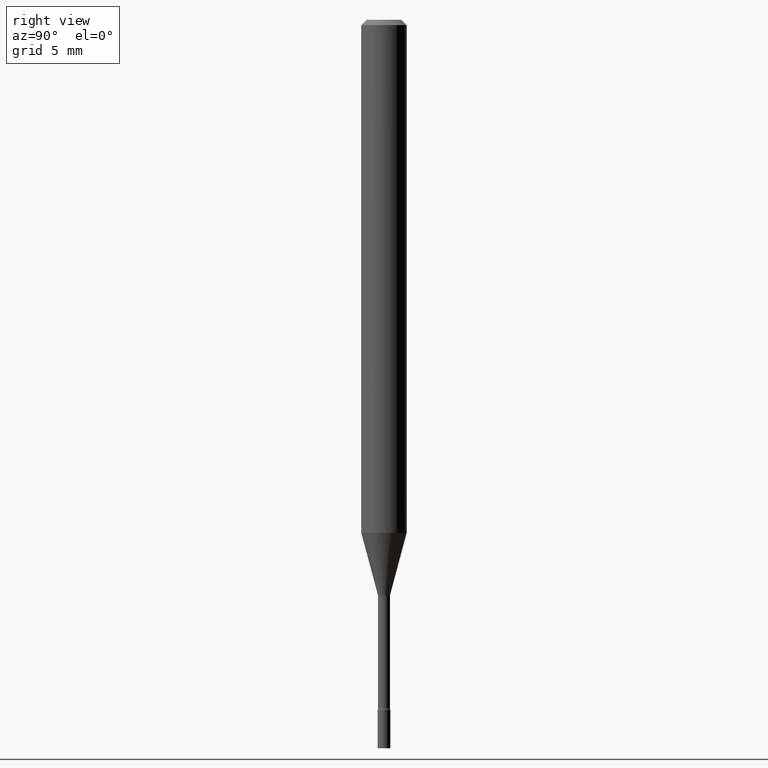
[diagram: clean part render]
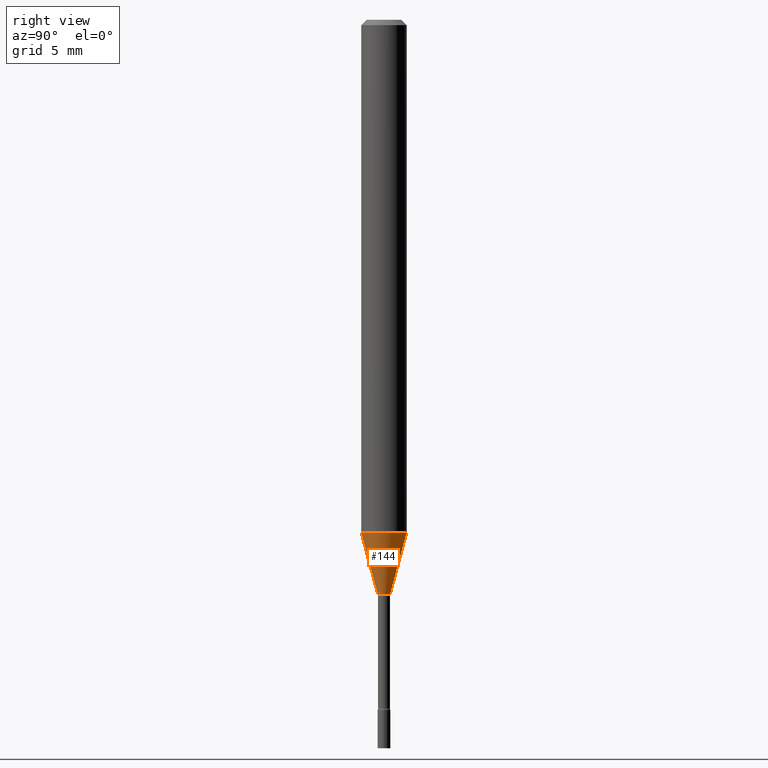
[diagram: same view with one face highlighted and labeled with its STEP entity id]
A machine part, right view. The second image highlights one B-rep face of the part: STEP entity #144.
In plain terms, the highlighted conical surface has half-angle 15 deg.
Its self-contained STEP definition (entity closure, byte-faithful):
#12 = CIRCLE ( 'NONE', #345, 0.06250000000000000000 ) ;
#21 = CONICAL_SURFACE ( 'NONE', #461, 0.01696111260566397771, 0.2617993877991496299 ) ;
#49 = CARTESIAN_POINT ( 'NONE',  ( 1.205159535236746208E-16, 0.01696111260565846823, -1.578092501787273116 ) ) ;
#54 = LINE ( 'NONE', #49, #253 ) ;
#65 = EDGE_CURVE ( 'NONE', #342, #257, #54, .T. ) ;
#76 = DIRECTION ( 'NONE',  ( -2.445498038093453575E-29, 3.491439477086658862E-15, 1.000000000000000000 ) ) ;
#82 = CARTESIAN_POINT ( 'NONE',  ( -4.364351673553573540E-16, -0.06250000000000494049, -1.408139060311453195 ) ) ;
#98 = VECTOR ( 'NONE', #503, 39.37007874015748854 ) ;
#114 = DIRECTION ( 'NONE',  ( -6.982962677686265922E-15, -1.000000000000000000, 4.370956789862821150E-15 ) ) ;
#115 = ORIENTED_EDGE ( 'NONE', *, *, #410, .F. ) ;
#144 = ADVANCED_FACE ( 'NONE', ( #251 ), #21, .T. ) ;
#147 = ORIENTED_EDGE ( 'NONE', *, *, #201, .F. ) ;
#167 = CIRCLE ( 'NONE', #264, 0.01696111260566397771 ) ;
#169 = DIRECTION ( 'NONE',  ( -6.982962677686266711E-15, -1.000000000000000000, 0.000000000000000000 ) ) ;
#172 = DIRECTION ( 'NONE',  ( -2.445498038093453575E-29, 3.491439477086658862E-15, 1.000000000000000000 ) ) ;
#186 = EDGE_LOOP ( 'NONE', ( #520, #392, #115, #147 ) ) ;
#201 = EDGE_CURVE ( 'NONE', #301, #409, #505, .T. ) ;
#242 = DIRECTION ( 'NONE',  ( 1.839019923739595977E-15, 0.2588190451025243477, 0.9659258262890673130 ) ) ;
#251 = FACE_OUTER_BOUND ( 'NONE', #186, .T. ) ;
#253 = VECTOR ( 'NONE', #242, 39.37007874015748143 ) ;
#257 = VERTEX_POINT ( 'NONE', #307 ) ;
#264 = AXIS2_PLACEMENT_3D ( 'NONE', #441, #76, #360 ) ;
#265 = CARTESIAN_POINT ( 'NONE',  ( -1.184388162973470360E-16, -0.01696111260566949067, -1.578092501787273116 ) ) ;
#296 = CARTESIAN_POINT ( 'NONE',  ( 3.859222117050766275E-29, -5.509814459234533825E-15, -1.578092501787273116 ) ) ;
#301 = VERTEX_POINT ( 'NONE', #265 ) ;
#307 = CARTESIAN_POINT ( 'NONE',  ( 4.440892098500969316E-16, 0.06249999999999507339, -1.408139060311453639 ) ) ;
#311 = CARTESIAN_POINT ( 'NONE',  ( 3.443601309354418931E-29, -4.916432304399119598E-15, -1.408139060311453417 ) ) ;
#342 = VERTEX_POINT ( 'NONE', #467 ) ;
#345 = AXIS2_PLACEMENT_3D ( 'NONE', #311, #519, #114 ) ;
#360 = DIRECTION ( 'NONE',  ( -6.982962677686266711E-15, -1.000000000000000000, 0.000000000000000000 ) ) ;
#392 = ORIENTED_EDGE ( 'NONE', *, *, #65, .T. ) ;
#409 = VERTEX_POINT ( 'NONE', #82 ) ;
#410 = EDGE_CURVE ( 'NONE', #409, #257, #12, .T. ) ;
#425 = CARTESIAN_POINT ( 'NONE',  ( -1.184388162973470360E-16, -0.01696111260566949067, -1.578092501787273116 ) ) ;
#441 = CARTESIAN_POINT ( 'NONE',  ( 3.859222117050766275E-29, -5.509814459234533825E-15, -1.578092501787273116 ) ) ;
#461 = AXIS2_PLACEMENT_3D ( 'NONE', #296, #172, #169 ) ;
#467 = CARTESIAN_POINT ( 'NONE',  ( 2.823025816868859611E-16, 0.01696111260565846823, -1.578092501787273116 ) ) ;
#497 = EDGE_CURVE ( 'NONE', #301, #342, #167, .T. ) ;
#503 = DIRECTION ( 'NONE',  ( -1.807323732225325801E-15, -0.2588190451025175753, 0.9659258262890690894 ) ) ;
#505 = LINE ( 'NONE', #425, #98 ) ;
#519 = DIRECTION ( 'NONE',  ( -2.445498038093453575E-29, 3.491439477086658862E-15, 1.000000000000000000 ) ) ;
#520 = ORIENTED_EDGE ( 'NONE', *, *, #497, .T. ) ;